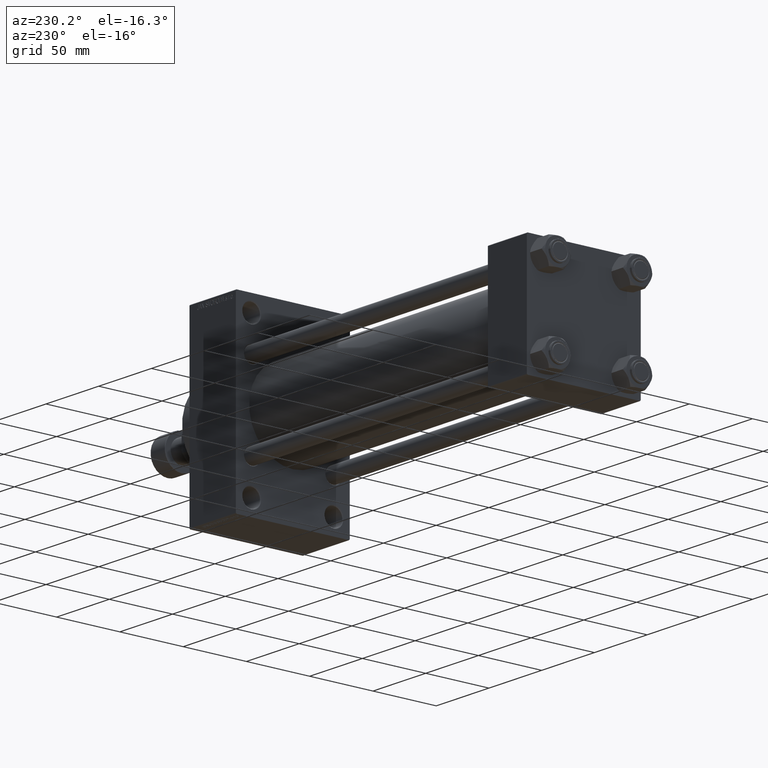
[diagram: clean part render]
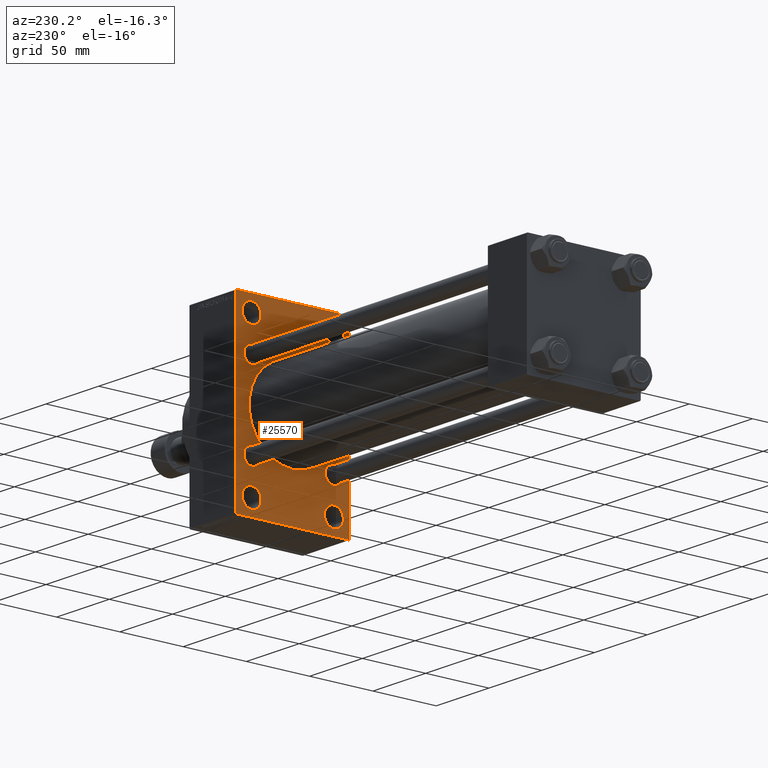
[diagram: same view with one face highlighted and labeled with its STEP entity id]
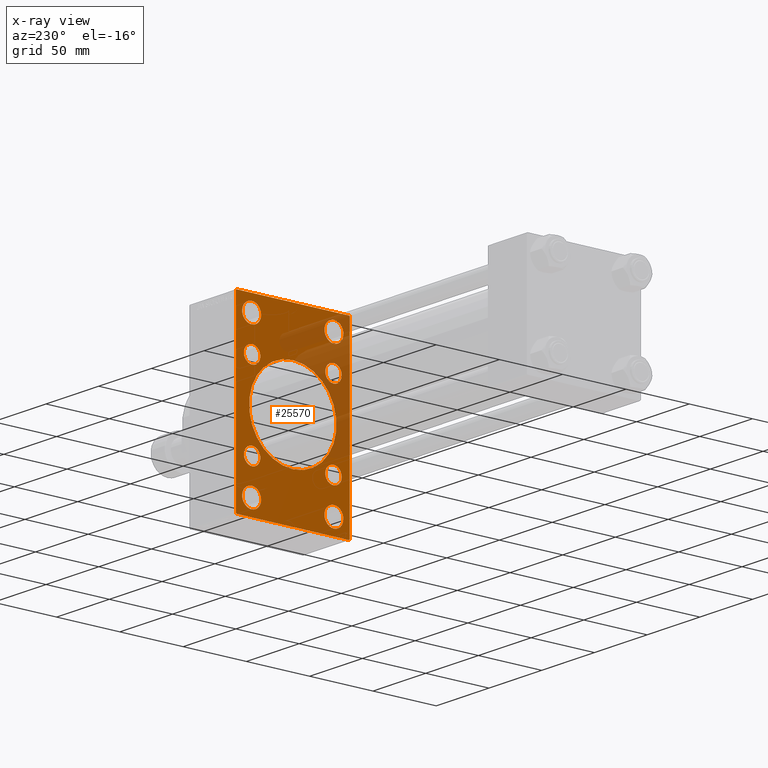
[diagram: x-ray of the same camera — body ghosted, the highlighted face saturated]
A machine part, auxiliary view. The second image highlights one B-rep face of the part: STEP entity #25570.
The next image is the same camera in x-ray: the body ghosted, the highlighted face saturated — about 24% of this face is hidden behind the body in this view.
In plain terms, the highlighted planar face has unit normal (-1, 0, 0).
Its self-contained STEP definition (entity closure, byte-faithful):
#40 = DIRECTION ( 'NONE',  ( 0.000000000000000000, 0.000000000000000000, 1.000000000000000000 ) ) ;
#397 = CARTESIAN_POINT ( 'NONE',  ( 275.9999999999999432, -2.602085213965210642E-15, 0.000000000000000000 ) ) ;
#661 = FACE_BOUND ( 'NONE', #38605, .T. ) ;
#756 = CIRCLE ( 'NONE', #27684, 6.500000000000005329 ) ;
#1213 = EDGE_CURVE ( 'NONE', #29890, #44750, #756, .T. ) ;
#1224 = CIRCLE ( 'NONE', #5847, 7.500000000000062172 ) ;
#1237 = VERTEX_POINT ( 'NONE', #47542 ) ;
#1434 = CARTESIAN_POINT ( 'NONE',  ( 275.9999999999999432, -57.75000000000028422, 57.74999999999948841 ) ) ;
#1593 = ORIENTED_EDGE ( 'NONE', *, *, #17688, .T. ) ;
#2272 = ORIENTED_EDGE ( 'NONE', *, *, #8745, .T. ) ;
#2356 = AXIS2_PLACEMENT_3D ( 'NONE', #41172, #26690, #18988 ) ;
#2513 = DIRECTION ( 'NONE',  ( 1.000000000000000000, -0.000000000000000000, 0.000000000000000000 ) ) ;
#2703 = DIRECTION ( 'NONE',  ( 0.000000000000000000, 0.000000000000000000, 1.000000000000000000 ) ) ;
#2881 = LINE ( 'NONE', #6732, #39018 ) ;
#2931 = AXIS2_PLACEMENT_3D ( 'NONE', #22019, #2513, #44442 ) ;
#3151 = DIRECTION ( 'NONE',  ( 1.000000000000000000, -0.000000000000000000, 0.000000000000000000 ) ) ;
#3332 = CARTESIAN_POINT ( 'NONE',  ( 275.9999999999999432, 32.14999999999999147, -25.64999999999999858 ) ) ;
#3472 = CARTESIAN_POINT ( 'NONE',  ( 275.9999999999999432, 1.622946243093157097E-15, -34.50000000000000000 ) ) ;
#3601 = DIRECTION ( 'NONE',  ( 0.000000000000000000, -0.7071067811865965336, 0.7071067811864985009 ) ) ;
#3610 = EDGE_CURVE ( 'NONE', #31723, #34119, #32375, .T. ) ;
#3693 = LINE ( 'NONE', #44189, #22487 ) ;
#3721 = ORIENTED_EDGE ( 'NONE', *, *, #28403, .T. ) ;
#4266 = FACE_BOUND ( 'NONE', #17766, .T. ) ;
#4343 = CARTESIAN_POINT ( 'NONE',  ( 275.9999999999999432, -44.49999999999995026, 70.99999999999998579 ) ) ;
#4604 = EDGE_CURVE ( 'NONE', #27975, #41363, #44710, .T. ) ;
#4661 = EDGE_LOOP ( 'NONE', ( #11861, #44366 ) ) ;
#5197 = ORIENTED_EDGE ( 'NONE', *, *, #28916, .T. ) ;
#5493 = CARTESIAN_POINT ( 'NONE',  ( 275.9999999999999432, -32.50000000000000000, -66.00000000000005684 ) ) ;
#5649 = AXIS2_PLACEMENT_3D ( 'NONE', #20238, #19523, #38108 ) ;
#5709 = CARTESIAN_POINT ( 'NONE',  ( 275.9999999999999432, -32.14999999999997726, 32.15000000000001279 ) ) ;
#5847 = AXIS2_PLACEMENT_3D ( 'NONE', #28723, #18822, #40 ) ;
#6016 = ORIENTED_EDGE ( 'NONE', *, *, #40805, .T. ) ;
#6719 = VECTOR ( 'NONE', #27402, 1000.000000000000000 ) ;
#6732 = CARTESIAN_POINT ( 'NONE',  ( 275.9999999999999432, -57.74999999999687361, -57.75000000000488853 ) ) ;
#7021 = CARTESIAN_POINT ( 'NONE',  ( 275.9999999999999432, -32.50000000000000000, 66.00000000000007105 ) ) ;
#7293 = CIRCLE ( 'NONE', #9612, 7.500000000000062172 ) ;
#7924 = VERTEX_POINT ( 'NONE', #42919 ) ;
#7951 = CIRCLE ( 'NONE', #24872, 34.50000000000000000 ) ;
#8110 = CARTESIAN_POINT ( 'NONE',  ( 275.9999999999999432, 0.000000000000000000, 0.000000000000000000 ) ) ;
#8202 = DIRECTION ( 'NONE',  ( 1.000000000000000000, -0.000000000000000000, 0.000000000000000000 ) ) ;
#8329 = VERTEX_POINT ( 'NONE', #46016 ) ;
#8745 = EDGE_CURVE ( 'NONE', #1237, #23875, #47614, .T. ) ;
#8752 = CARTESIAN_POINT ( 'NONE',  ( 275.9999999999999432, 32.14999999999999147, 38.65000000000001279 ) ) ;
#8873 = VERTEX_POINT ( 'NONE', #8752 ) ;
#9152 = DIRECTION ( 'NONE',  ( 0.000000000000000000, 0.000000000000000000, 1.000000000000000000 ) ) ;
#9286 = LINE ( 'NONE', #27135, #16646 ) ;
#9612 = AXIS2_PLACEMENT_3D ( 'NONE', #15724, #15021, #11160 ) ;
#10019 = CARTESIAN_POINT ( 'NONE',  ( 275.9999999999999432, -32.14999999999997726, 25.65000000000000213 ) ) ;
#10045 = EDGE_CURVE ( 'NONE', #23875, #14347, #26557, .T. ) ;
#10203 = ORIENTED_EDGE ( 'NONE', *, *, #44574, .F. ) ;
#10452 = DIRECTION ( 'NONE',  ( 0.000000000000000000, 0.000000000000000000, 1.000000000000000000 ) ) ;
#10744 = CARTESIAN_POINT ( 'NONE',  ( 275.9999999999999432, 32.50000000000000711, -50.99999999999993605 ) ) ;
#10776 = ORIENTED_EDGE ( 'NONE', *, *, #3610, .T. ) ;
#11071 = VERTEX_POINT ( 'NONE', #7021 ) ;
#11127 = DIRECTION ( 'NONE',  ( 1.000000000000000000, -0.000000000000000000, 0.000000000000000000 ) ) ;
#11160 = DIRECTION ( 'NONE',  ( 0.000000000000000000, 0.000000000000000000, 1.000000000000000000 ) ) ;
#11497 = DIRECTION ( 'NONE',  ( -0.000000000000000000, 0.000000000000000000, 1.000000000000000000 ) ) ;
#11546 = EDGE_CURVE ( 'NONE', #34652, #16769, #31483, .T. ) ;
#11799 = LINE ( 'NONE', #1434, #45104 ) ;
#11812 = CARTESIAN_POINT ( 'NONE',  ( 275.9999999999999432, 32.14999999999999147, -38.65000000000001279 ) ) ;
#11861 = ORIENTED_EDGE ( 'NONE', *, *, #29494, .T. ) ;
#11923 = ORIENTED_EDGE ( 'NONE', *, *, #11546, .F. ) ;
#11948 = AXIS2_PLACEMENT_3D ( 'NONE', #20875, #38347, #34009 ) ;
#11951 = DIRECTION ( 'NONE',  ( 0.000000000000000000, 0.000000000000000000, -1.000000000000000000 ) ) ;
#12015 = EDGE_CURVE ( 'NONE', #34119, #31723, #36540, .T. ) ;
#12451 = FACE_BOUND ( 'NONE', #19693, .T. ) ;
#12680 = DIRECTION ( 'NONE',  ( 0.000000000000000000, -1.000000000000000000, -1.541976423090495633E-16 ) ) ;
#12687 = VERTEX_POINT ( 'NONE', #40673 ) ;
#13458 = CIRCLE ( 'NONE', #11948, 7.500000000000062172 ) ;
#13477 = CARTESIAN_POINT ( 'NONE',  ( 275.9999999999999432, 32.50000000000000711, -58.50000000000000000 ) ) ;
#13530 = EDGE_CURVE ( 'NONE', #15875, #32069, #7951, .T. ) ;
#13801 = EDGE_LOOP ( 'NONE', ( #18489, #27199 ) ) ;
#13820 = DIRECTION ( 'NONE',  ( 0.000000000000000000, 0.000000000000000000, -1.000000000000000000 ) ) ;
#14110 = VERTEX_POINT ( 'NONE', #14498 ) ;
#14271 = EDGE_CURVE ( 'NONE', #12687, #11071, #41866, .T. ) ;
#14314 = DIRECTION ( 'NONE',  ( 1.000000000000000000, -0.000000000000000000, 0.000000000000000000 ) ) ;
#14347 = VERTEX_POINT ( 'NONE', #21421 ) ;
#14438 = EDGE_LOOP ( 'NONE', ( #38800, #1593 ) ) ;
#14498 = CARTESIAN_POINT ( 'NONE',  ( 275.9999999999999432, 32.14999999999999147, 25.65000000000000213 ) ) ;
#14580 = CARTESIAN_POINT ( 'NONE',  ( 275.9999999999999432, 45.00000000000002132, 71.00000000000000000 ) ) ;
#14661 = CARTESIAN_POINT ( 'NONE',  ( 275.9999999999999432, -32.14999999999997726, -38.65000000000001990 ) ) ;
#15021 = DIRECTION ( 'NONE',  ( 1.000000000000000000, -0.000000000000000000, 0.000000000000000000 ) ) ;
#15088 = DIRECTION ( 'NONE',  ( 1.000000000000000000, 0.000000000000000000, 0.000000000000000000 ) ) ;
#15351 = FACE_BOUND ( 'NONE', #26535, .T. ) ;
#15387 = CARTESIAN_POINT ( 'NONE',  ( 275.9999999999999432, -32.50000000000000000, -50.99999999999992184 ) ) ;
#15724 = CARTESIAN_POINT ( 'NONE',  ( 275.9999999999999432, 32.50000000000000711, -58.50000000000000000 ) ) ;
#15875 = VERTEX_POINT ( 'NONE', #3472 ) ;
#16523 = CARTESIAN_POINT ( 'NONE',  ( 275.9999999999999432, -44.99999999999997158, 70.99999999999998579 ) ) ;
#16646 = VECTOR ( 'NONE', #12680, 1000.000000000000000 ) ;
#16769 = VERTEX_POINT ( 'NONE', #29305 ) ;
#16800 = CIRCLE ( 'NONE', #2931, 6.500000000000005329 ) ;
#17672 = VERTEX_POINT ( 'NONE', #11812 ) ;
#17688 = EDGE_CURVE ( 'NONE', #7924, #34661, #13458, .T. ) ;
#17707 = EDGE_LOOP ( 'NONE', ( #6016, #35221, #11923, #19843, #10203, #3721, #2272, #42568 ) ) ;
#17766 = EDGE_LOOP ( 'NONE', ( #45579, #10776 ) ) ;
#17856 = DIRECTION ( 'NONE',  ( 0.000000000000000000, 0.000000000000000000, 1.000000000000000000 ) ) ;
#17983 = DIRECTION ( 'NONE',  ( 1.000000000000000000, -0.000000000000000000, 0.000000000000000000 ) ) ;
#18441 = EDGE_CURVE ( 'NONE', #14110, #8873, #39695, .T. ) ;
#18489 = ORIENTED_EDGE ( 'NONE', *, *, #47081, .T. ) ;
#18822 = DIRECTION ( 'NONE',  ( 1.000000000000000000, -0.000000000000000000, 0.000000000000000000 ) ) ;
#18988 = DIRECTION ( 'NONE',  ( 0.000000000000000000, 0.000000000000000000, 1.000000000000000000 ) ) ;
#19523 = DIRECTION ( 'NONE',  ( 1.000000000000000000, -0.000000000000000000, 0.000000000000000000 ) ) ;
#19693 = EDGE_LOOP ( 'NONE', ( #38549, #5197 ) ) ;
#19795 = CARTESIAN_POINT ( 'NONE',  ( 275.9999999999999432, -44.49999999999988631, -71.00000000000000000 ) ) ;
#19843 = ORIENTED_EDGE ( 'NONE', *, *, #36668, .T. ) ;
#19910 = EDGE_CURVE ( 'NONE', #34661, #7924, #1224, .T. ) ;
#20238 = CARTESIAN_POINT ( 'NONE',  ( 275.9999999999999432, -32.50000000000000000, 58.50000000000000711 ) ) ;
#20405 = LINE ( 'NONE', #46211, #6719 ) ;
#20778 = DIRECTION ( 'NONE',  ( 1.000000000000000000, -0.000000000000000000, 0.000000000000000000 ) ) ;
#20875 = CARTESIAN_POINT ( 'NONE',  ( 275.9999999999999432, 32.50000000000000711, 58.50000000000000711 ) ) ;
#21161 = EDGE_CURVE ( 'NONE', #35584, #16769, #2881, .T. ) ;
#21259 = CARTESIAN_POINT ( 'NONE',  ( 275.9999999999999432, -32.50000000000000000, -58.49999999999999289 ) ) ;
#21421 = CARTESIAN_POINT ( 'NONE',  ( 275.9999999999999432, 44.50000000000001421, -70.99999999999998579 ) ) ;
#21459 = CARTESIAN_POINT ( 'NONE',  ( 275.9999999999999432, -32.14999999999997726, -32.15000000000001279 ) ) ;
#21836 = DIRECTION ( 'NONE',  ( 0.000000000000000000, 0.000000000000000000, 1.000000000000000000 ) ) ;
#21930 = AXIS2_PLACEMENT_3D ( 'NONE', #36748, #14314, #10452 ) ;
#22019 = CARTESIAN_POINT ( 'NONE',  ( 275.9999999999999432, 32.14999999999999147, -32.15000000000000568 ) ) ;
#22229 = AXIS2_PLACEMENT_3D ( 'NONE', #21459, #3151, #17856 ) ;
#22487 = VECTOR ( 'NONE', #30450, 1000.000000000000000 ) ;
#22519 = CIRCLE ( 'NONE', #26369, 7.500000000000062172 ) ;
#23035 = ORIENTED_EDGE ( 'NONE', *, *, #18441, .T. ) ;
#23875 = VERTEX_POINT ( 'NONE', #36243 ) ;
#24872 = AXIS2_PLACEMENT_3D ( 'NONE', #42997, #28527, #13820 ) ;
#24875 = VECTOR ( 'NONE', #44882, 999.9999999999998863 ) ;
#24949 = EDGE_LOOP ( 'NONE', ( #28506, #26127 ) ) ;
#25343 = CARTESIAN_POINT ( 'NONE',  ( 275.9999999999999432, 32.14999999999999147, -32.15000000000000568 ) ) ;
#25570 = ADVANCED_FACE ( 'NONE', ( #40918, #4266, #34161, #41397, #12451, #661, #15351, #30071, #41159, #30552 ), #34646, .T. ) ;
#25636 = CARTESIAN_POINT ( 'NONE',  ( 275.9999999999999432, -44.99999999999997158, 70.49999999999998579 ) ) ;
#26056 = AXIS2_PLACEMENT_3D ( 'NONE', #13477, #32057, #28193 ) ;
#26127 = ORIENTED_EDGE ( 'NONE', *, *, #47480, .T. ) ;
#26161 = DIRECTION ( 'NONE',  ( 0.000000000000000000, 0.000000000000000000, -1.000000000000000000 ) ) ;
#26369 = AXIS2_PLACEMENT_3D ( 'NONE', #44146, #8202, #32846 ) ;
#26535 = EDGE_LOOP ( 'NONE', ( #33601, #38640 ) ) ;
#26557 = LINE ( 'NONE', #44417, #24875 ) ;
#26690 = DIRECTION ( 'NONE',  ( 1.000000000000000000, -0.000000000000000000, 0.000000000000000000 ) ) ;
#27135 = CARTESIAN_POINT ( 'NONE',  ( 275.9999999999999432, 45.00000000000001421, -70.99999999999998579 ) ) ;
#27199 = ORIENTED_EDGE ( 'NONE', *, *, #4604, .T. ) ;
#27233 = VECTOR ( 'NONE', #11951, 1000.000000000000000 ) ;
#27402 = DIRECTION ( 'NONE',  ( 0.000000000000000000, -1.000000000000000000, -1.541976423090495387E-16 ) ) ;
#27684 = AXIS2_PLACEMENT_3D ( 'NONE', #43429, #32849, #29696 ) ;
#27975 = VERTEX_POINT ( 'NONE', #14661 ) ;
#28193 = DIRECTION ( 'NONE',  ( 0.000000000000000000, 0.000000000000000000, 1.000000000000000000 ) ) ;
#28403 = EDGE_CURVE ( 'NONE', #38785, #1237, #3693, .T. ) ;
#28506 = ORIENTED_EDGE ( 'NONE', *, *, #38747, .T. ) ;
#28527 = DIRECTION ( 'NONE',  ( 1.000000000000000000, 0.000000000000000000, 0.000000000000000000 ) ) ;
#28600 = DIRECTION ( 'NONE',  ( 1.000000000000000000, -0.000000000000000000, 0.000000000000000000 ) ) ;
#28723 = CARTESIAN_POINT ( 'NONE',  ( 275.9999999999999432, 32.50000000000000711, 58.50000000000000711 ) ) ;
#28916 = EDGE_CURVE ( 'NONE', #44750, #29890, #31013, .T. ) ;
#28919 = VERTEX_POINT ( 'NONE', #10744 ) ;
#29169 = CIRCLE ( 'NONE', #26056, 7.500000000000062172 ) ;
#29291 = DIRECTION ( 'NONE',  ( 0.000000000000000000, -4.886545002751570165E-17, -1.000000000000000000 ) ) ;
#29305 = CARTESIAN_POINT ( 'NONE',  ( 275.9999999999999432, -44.99999999999997158, -70.50000000000000000 ) ) ;
#29494 = EDGE_CURVE ( 'NONE', #11071, #12687, #22519, .T. ) ;
#29696 = DIRECTION ( 'NONE',  ( 0.000000000000000000, 0.000000000000000000, 1.000000000000000000 ) ) ;
#29890 = VERTEX_POINT ( 'NONE', #32788 ) ;
#30071 = FACE_BOUND ( 'NONE', #13801, .T. ) ;
#30450 = DIRECTION ( 'NONE',  ( 0.000000000000000000, 0.7071067811865867636, -0.7071067811865081598 ) ) ;
#30552 = FACE_OUTER_BOUND ( 'NONE', #17707, .T. ) ;
#30608 = ORIENTED_EDGE ( 'NONE', *, *, #45819, .T. ) ;
#30897 = AXIS2_PLACEMENT_3D ( 'NONE', #46930, #28600, #21836 ) ;
#31013 = CIRCLE ( 'NONE', #36383, 6.500000000000005329 ) ;
#31483 = LINE ( 'NONE', #16523, #27233 ) ;
#31549 = EDGE_LOOP ( 'NONE', ( #30608, #40671 ) ) ;
#31572 = EDGE_CURVE ( 'NONE', #44318, #17672, #32621, .T. ) ;
#31723 = VERTEX_POINT ( 'NONE', #5493 ) ;
#32057 = DIRECTION ( 'NONE',  ( 1.000000000000000000, -0.000000000000000000, 0.000000000000000000 ) ) ;
#32069 = VERTEX_POINT ( 'NONE', #46664 ) ;
#32375 = CIRCLE ( 'NONE', #2356, 7.500000000000069278 ) ;
#32419 = CARTESIAN_POINT ( 'NONE',  ( 275.9999999999999432, 32.50000000000000711, 66.00000000000007105 ) ) ;
#32621 = CIRCLE ( 'NONE', #42627, 6.500000000000005329 ) ;
#32788 = CARTESIAN_POINT ( 'NONE',  ( 275.9999999999999432, -32.14999999999997726, 38.65000000000002700 ) ) ;
#32846 = DIRECTION ( 'NONE',  ( 0.000000000000000000, 0.000000000000000000, 1.000000000000000000 ) ) ;
#32849 = DIRECTION ( 'NONE',  ( 1.000000000000000000, -0.000000000000000000, 0.000000000000000000 ) ) ;
#33359 = CARTESIAN_POINT ( 'NONE',  ( 275.9999999999999432, 44.49999999999996447, 71.00000000000000000 ) ) ;
#33601 = ORIENTED_EDGE ( 'NONE', *, *, #31572, .T. ) ;
#33720 = CIRCLE ( 'NONE', #44510, 34.50000000000000000 ) ;
#33998 = DIRECTION ( 'NONE',  ( -0.000000000000000000, 0.7071067811865426878, 0.7071067811865524577 ) ) ;
#34009 = DIRECTION ( 'NONE',  ( 0.000000000000000000, 0.000000000000000000, 1.000000000000000000 ) ) ;
#34119 = VERTEX_POINT ( 'NONE', #15387 ) ;
#34161 = FACE_BOUND ( 'NONE', #24949, .T. ) ;
#34646 = PLANE ( 'NONE',  #39359 ) ;
#34652 = VERTEX_POINT ( 'NONE', #25636 ) ;
#34661 = VERTEX_POINT ( 'NONE', #32419 ) ;
#35221 = ORIENTED_EDGE ( 'NONE', *, *, #21161, .T. ) ;
#35513 = DIRECTION ( 'NONE',  ( 0.000000000000000000, 0.000000000000000000, 1.000000000000000000 ) ) ;
#35584 = VERTEX_POINT ( 'NONE', #19795 ) ;
#35753 = AXIS2_PLACEMENT_3D ( 'NONE', #21259, #20778, #35513 ) ;
#36243 = CARTESIAN_POINT ( 'NONE',  ( 275.9999999999999432, 45.00000000000001421, -70.49999999999997158 ) ) ;
#36383 = AXIS2_PLACEMENT_3D ( 'NONE', #5709, #17983, #47163 ) ;
#36540 = CIRCLE ( 'NONE', #35753, 7.500000000000069278 ) ;
#36668 = EDGE_CURVE ( 'NONE', #34652, #37776, #11799, .T. ) ;
#36748 = CARTESIAN_POINT ( 'NONE',  ( 275.9999999999999432, 32.14999999999999147, 32.15000000000000568 ) ) ;
#37776 = VERTEX_POINT ( 'NONE', #4343 ) ;
#38024 = DIRECTION ( 'NONE',  ( -1.000000000000000000, 0.000000000000000000, -0.000000000000000000 ) ) ;
#38108 = DIRECTION ( 'NONE',  ( 0.000000000000000000, 0.000000000000000000, 1.000000000000000000 ) ) ;
#38347 = DIRECTION ( 'NONE',  ( 1.000000000000000000, -0.000000000000000000, 0.000000000000000000 ) ) ;
#38396 = CIRCLE ( 'NONE', #22229, 6.500000000000005329 ) ;
#38549 = ORIENTED_EDGE ( 'NONE', *, *, #1213, .T. ) ;
#38605 = EDGE_LOOP ( 'NONE', ( #41458, #23035 ) ) ;
#38640 = ORIENTED_EDGE ( 'NONE', *, *, #46012, .T. ) ;
#38666 = EDGE_CURVE ( 'NONE', #8873, #14110, #42724, .T. ) ;
#38747 = EDGE_CURVE ( 'NONE', #28919, #8329, #7293, .T. ) ;
#38785 = VERTEX_POINT ( 'NONE', #33359 ) ;
#38800 = ORIENTED_EDGE ( 'NONE', *, *, #19910, .T. ) ;
#39018 = VECTOR ( 'NONE', #3601, 1000.000000000000114 ) ;
#39359 = AXIS2_PLACEMENT_3D ( 'NONE', #8110, #38024, #11497 ) ;
#39695 = CIRCLE ( 'NONE', #46608, 6.499999999999999112 ) ;
#40260 = VECTOR ( 'NONE', #29291, 1000.000000000000000 ) ;
#40671 = ORIENTED_EDGE ( 'NONE', *, *, #13530, .T. ) ;
#40673 = CARTESIAN_POINT ( 'NONE',  ( 275.9999999999999432, -32.50000000000000000, 50.99999999999995026 ) ) ;
#40805 = EDGE_CURVE ( 'NONE', #14347, #35584, #9286, .T. ) ;
#40918 = FACE_BOUND ( 'NONE', #4661, .T. ) ;
#41159 = FACE_BOUND ( 'NONE', #31549, .T. ) ;
#41172 = CARTESIAN_POINT ( 'NONE',  ( 275.9999999999999432, -32.50000000000000000, -58.49999999999999289 ) ) ;
#41268 = CARTESIAN_POINT ( 'NONE',  ( 275.9999999999999432, -32.14999999999997726, -25.65000000000000568 ) ) ;
#41363 = VERTEX_POINT ( 'NONE', #41268 ) ;
#41397 = FACE_BOUND ( 'NONE', #14438, .T. ) ;
#41458 = ORIENTED_EDGE ( 'NONE', *, *, #38666, .T. ) ;
#41866 = CIRCLE ( 'NONE', #5649, 7.500000000000062172 ) ;
#42201 = DIRECTION ( 'NONE',  ( 1.000000000000000000, -0.000000000000000000, 0.000000000000000000 ) ) ;
#42568 = ORIENTED_EDGE ( 'NONE', *, *, #10045, .T. ) ;
#42627 = AXIS2_PLACEMENT_3D ( 'NONE', #25343, #11127, #2703 ) ;
#42724 = CIRCLE ( 'NONE', #21930, 6.499999999999999112 ) ;
#42919 = CARTESIAN_POINT ( 'NONE',  ( 275.9999999999999432, 32.50000000000000711, 50.99999999999995026 ) ) ;
#42997 = CARTESIAN_POINT ( 'NONE',  ( 275.9999999999999432, -2.602085213965210642E-15, 0.000000000000000000 ) ) ;
#43429 = CARTESIAN_POINT ( 'NONE',  ( 275.9999999999999432, -32.14999999999997726, 32.15000000000001279 ) ) ;
#44146 = CARTESIAN_POINT ( 'NONE',  ( 275.9999999999999432, -32.50000000000000000, 58.50000000000000711 ) ) ;
#44189 = CARTESIAN_POINT ( 'NONE',  ( 275.9999999999999432, 57.74999999999750599, 57.75000000000390799 ) ) ;
#44318 = VERTEX_POINT ( 'NONE', #3332 ) ;
#44366 = ORIENTED_EDGE ( 'NONE', *, *, #14271, .T. ) ;
#44417 = CARTESIAN_POINT ( 'NONE',  ( 275.9999999999999432, 57.75000000000061817, -57.74999999999901235 ) ) ;
#44442 = DIRECTION ( 'NONE',  ( 0.000000000000000000, 0.000000000000000000, 1.000000000000000000 ) ) ;
#44510 = AXIS2_PLACEMENT_3D ( 'NONE', #397, #15088, #26161 ) ;
#44574 = EDGE_CURVE ( 'NONE', #38785, #37776, #20405, .T. ) ;
#44710 = CIRCLE ( 'NONE', #30897, 6.500000000000005329 ) ;
#44750 = VERTEX_POINT ( 'NONE', #10019 ) ;
#44882 = DIRECTION ( 'NONE',  ( -0.000000000000000000, -0.7071067811865376918, -0.7071067811865574537 ) ) ;
#45104 = VECTOR ( 'NONE', #33998, 1000.000000000000000 ) ;
#45569 = CARTESIAN_POINT ( 'NONE',  ( 275.9999999999999432, 32.14999999999999147, 32.15000000000000568 ) ) ;
#45579 = ORIENTED_EDGE ( 'NONE', *, *, #12015, .T. ) ;
#45819 = EDGE_CURVE ( 'NONE', #32069, #15875, #33720, .T. ) ;
#46012 = EDGE_CURVE ( 'NONE', #17672, #44318, #16800, .T. ) ;
#46016 = CARTESIAN_POINT ( 'NONE',  ( 275.9999999999999432, 32.50000000000000711, -66.00000000000005684 ) ) ;
#46211 = CARTESIAN_POINT ( 'NONE',  ( 275.9999999999999432, 45.00000000000002132, 71.00000000000000000 ) ) ;
#46608 = AXIS2_PLACEMENT_3D ( 'NONE', #45569, #42201, #9152 ) ;
#46664 = CARTESIAN_POINT ( 'NONE',  ( 275.9999999999999432, -2.602085213965210642E-15, 34.50000000000000000 ) ) ;
#46930 = CARTESIAN_POINT ( 'NONE',  ( 275.9999999999999432, -32.14999999999997726, -32.15000000000001279 ) ) ;
#47081 = EDGE_CURVE ( 'NONE', #41363, #27975, #38396, .T. ) ;
#47163 = DIRECTION ( 'NONE',  ( 0.000000000000000000, 0.000000000000000000, 1.000000000000000000 ) ) ;
#47480 = EDGE_CURVE ( 'NONE', #8329, #28919, #29169, .T. ) ;
#47542 = CARTESIAN_POINT ( 'NONE',  ( 275.9999999999999432, 45.00000000000002132, 70.50000000000000000 ) ) ;
#47614 = LINE ( 'NONE', #14580, #40260 ) ;